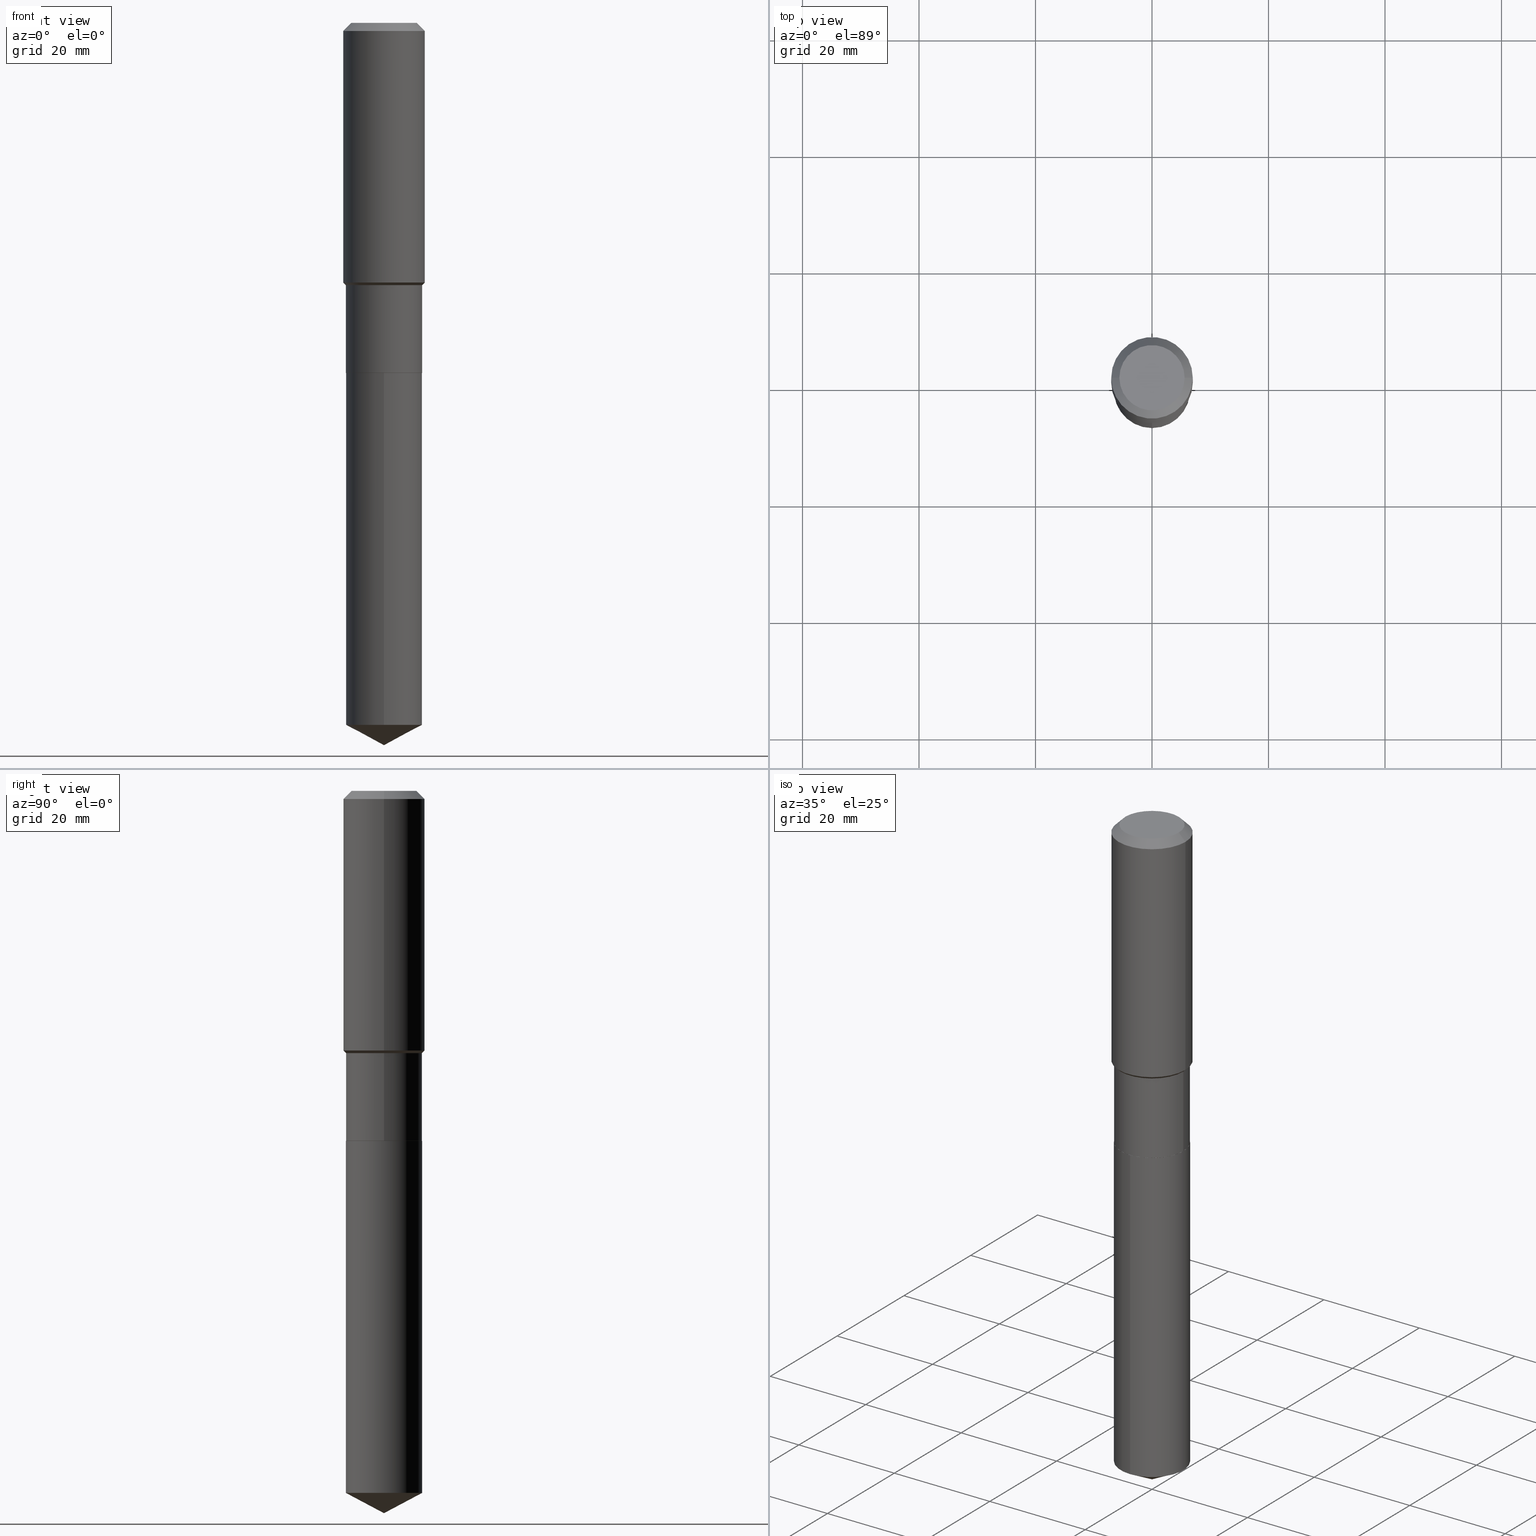
[diagram: canonical four-view strip — front | top / right | iso, engineering-drawing reading convention]
A machine part, canonical four-view strip (front | top / right | iso — engineering-drawing reading convention). The complete STEP part file that produces these views, byte-faithful:
ISO-10303-21;
HEADER;
FILE_DESCRIPTION (( 'STEP AP203' ),
    '1' );
FILE_NAME ('54829.STEP',
    '2024-04-24T16:04:50',
    ( '' ),
    ( '' ),
    'SwSTEP 2.0',
    'SolidWorks 2023',
    '' );
FILE_SCHEMA (( 'CONFIG_CONTROL_DESIGN' ));
ENDSEC;

DATA;
#1 = APPROVAL ( #55, 'UNSPECIFIED' ) ;
#2 = ORIENTED_EDGE ( 'NONE', *, *, #311, .F. ) ;
#3 = AXIS2_PLACEMENT_3D ( 'NONE', #380, #146, #4 ) ;
#4 = DIRECTION ( 'NONE',  ( 1.000000000000000000, -6.982962677686266711E-15, 4.876132675269083677E-29 ) ) ;
#5 = AXIS2_PLACEMENT_3D ( 'NONE', #474, #402, #318 ) ;
#6 = EDGE_CURVE ( 'NONE', #155, #169, #469, .T. ) ;
#7 = CARTESIAN_POINT ( 'NONE',  ( 5.785001007911558337E-29, -8.259448255167344273E-15, -2.365599999999999703 ) ) ;
#8 = CARTESIAN_POINT ( 'NONE',  ( -0.2577999999999999181, 1.831779172789537697E-15, -1.268101466267714406E-29 ) ) ;
#9 =( NAMED_UNIT ( * ) SI_UNIT ( $, .STERADIAN. ) SOLID_ANGLE_UNIT ( ) );
#10 = EDGE_LOOP ( 'NONE', ( #302, #115 ) ) ;
#11 = DIRECTION ( 'NONE',  ( 1.000000000000000000, -6.982962677686265922E-15, 0.000000000000000000 ) ) ;
#12 = CLOSED_SHELL ( 'NONE', ( #239, #96, #489, #98, #188, #297, #265, #43, #486, #131, #62, #108 ) ) ;
#13 = CONICAL_SURFACE ( 'NONE', #280, 0.2756000000000000116, 0.7853981633974452814 ) ;
#14 = CYLINDRICAL_SURFACE ( 'NONE', #202, 0.2577999999999999181 ) ;
#15 = DIRECTION ( 'NONE',  ( -2.445468806185136597E-29, 3.491481338843145583E-15, 1.000000000000000000 ) ) ;
#16 = CARTESIAN_POINT ( 'NONE',  ( 1.160379970980934327E-28, -1.656648467126306659E-14, -4.744925308517671247 ) ) ;
#17 = CARTESIAN_POINT ( 'NONE',  ( 4.335082552724389788E-29, -6.189348969367241722E-15, -1.772699999999999276 ) ) ;
#18 = LINE ( 'NONE', #283, #264 ) ;
#19 = CONICAL_SURFACE ( 'NONE', #377, 0.2572999999999999732, 0.7853981633978239785 ) ;
#20 = APPROVAL_PERSON_ORGANIZATION ( #327, #1, #211 ) ;
#21 = DIRECTION ( 'NONE',  ( -6.982962677686265922E-15, -1.000000000000000000, 4.238709066973255853E-15 ) ) ;
#22 = DIRECTION ( 'NONE',  ( 1.000000000000000000, -6.982962677686267499E-15, 0.000000000000000000 ) ) ;
#23 = DATE_AND_TIME ( #208, #440 ) ;
#24 = ORIENTED_EDGE ( 'NONE', *, *, #38, .F. ) ;
#25 = DIRECTION ( 'NONE',  ( -2.445468806185136597E-29, 3.491481338843145583E-15, 1.000000000000000000 ) ) ;
#26 = LINE ( 'NONE', #405, #82 ) ;
#27 = DATE_AND_TIME ( #121, #216 ) ;
#28 = DIRECTION ( 'NONE',  ( -2.445566682734492897E-29, 3.491341174053680323E-15, 1.000000000000000000 ) ) ;
#29 = SECURITY_CLASSIFICATION ( '', '', #175 ) ;
#30 = APPROVAL_DATE_TIME ( #27, #112 ) ;
#31 = DIRECTION ( 'NONE',  ( -2.445566682734492897E-29, 3.491341174053679928E-15, 1.000000000000000000 ) ) ;
#32 = EDGE_LOOP ( 'NONE', ( #234, #337, #332, #189 ) ) ;
#33 = DIRECTION ( 'NONE',  ( -6.165590087286836029E-15, -0.8829475928589264333, 0.4694715627858916385 ) ) ;
#34 = DIRECTION ( 'NONE',  ( -0.7071067811865482389, 7.493145998870357316E-15, 0.7071067811865467956 ) ) ;
#35 = ORIENTED_EDGE ( 'NONE', *, *, #207, .F. ) ;
#36 = AXIS2_PLACEMENT_3D ( 'NONE', #306, #196, #11 ) ;
#37 = CIRCLE ( 'NONE', #118, 0.2756000000000002337 ) ;
#38 = EDGE_CURVE ( 'NONE', #68, #382, #85, .T. ) ;
#39 = DIRECTION ( 'NONE',  ( -2.445468806185136877E-29, 3.491481338843145188E-15, 1.000000000000000000 ) ) ;
#40 = EDGE_CURVE ( 'NONE', #169, #155, #236, .T. ) ;
#41 = AXIS2_PLACEMENT_3D ( 'NONE', #454, #73, #225 ) ;
#42 = VECTOR ( 'NONE', #359, 39.37007874015748143 ) ;
#43 = ADVANCED_FACE ( 'NONE', ( #281 ), #391, .T. ) ;
#44 = CARTESIAN_POINT ( 'NONE',  ( 0.2577999999999999181, -1.800207778307519167E-15, 1.257078372800191925E-29 ) ) ;
#45 = EDGE_LOOP ( 'NONE', ( #348, #153, #213, #274 ) ) ;
#46 = CARTESIAN_POINT ( 'NONE',  ( 0.2577999999999999181, -7.989556747674760100E-15, -1.772699999999999276 ) ) ;
#47 = AXIS2_PLACEMENT_3D ( 'NONE', #232, #154, #307 ) ;
#48 = ORIENTED_EDGE ( 'NONE', *, *, #479, .F. ) ;
#49 = DIRECTION ( 'NONE',  ( 1.000000000000000000, -6.982962677686266711E-15, 0.000000000000000000 ) ) ;
#50 = EDGE_CURVE ( 'NONE', #388, #397, #156, .T. ) ;
#51 = DIRECTION ( 'NONE',  ( -2.445566682734492897E-29, 3.491341174053680323E-15, 1.000000000000000000 ) ) ;
#52 = PERSON_AND_ORGANIZATION ( #308, #396 ) ;
#53 = CIRCLE ( 'NONE', #448, 0.2577999999999999181 ) ;
#54 = FACE_OUTER_BOUND ( 'NONE', #198, .T. ) ;
#55 = APPROVAL_STATUS ( 'not_yet_approved' ) ;
#56 = CARTESIAN_POINT ( 'NONE',  ( -0.2204800000000000093, 1.635828836874783961E-15, 3.860086710901350968E-18 ) ) ;
#57 = DIRECTION ( 'NONE',  ( 1.000000000000000000, -6.982962677686266711E-15, 0.000000000000000000 ) ) ;
#58 = DIRECTION ( 'NONE',  ( -2.445468806185136877E-29, 3.491481338843145188E-15, 1.000000000000000000 ) ) ;
#59 = COORDINATED_UNIVERSAL_TIME_OFFSET ( 5, 0, .BEHIND. ) ;
#60 = LINE ( 'NONE', #404, #100 ) ;
#61 = DIRECTION ( 'NONE',  ( -2.445566682734492897E-29, 3.491341174053680323E-15, 1.000000000000000000 ) ) ;
#62 = ADVANCED_FACE ( 'NONE', ( #78 ), #303, .F. ) ;
#63 = ORIENTED_EDGE ( 'NONE', *, *, #408, .T. ) ;
#64 = EDGE_CURVE ( 'NONE', #397, #237, #289, .T. ) ;
#65 = CC_DESIGN_APPROVAL ( #286, ( #29 ) ) ;
#66 = EDGE_CURVE ( 'NONE', #382, #462, #99, .T. ) ;
#67 = DIRECTION ( 'NONE',  ( 1.000000000000000000, -6.982962677686264344E-15, 0.000000000000000000 ) ) ;
#68 = VERTEX_POINT ( 'NONE', #472 ) ;
#69 = DIRECTION ( 'NONE',  ( -2.445468806185136597E-29, 3.491481338843145583E-15, 1.000000000000000000 ) ) ;
#70 = AXIS2_PLACEMENT_3D ( 'NONE', #275, #238, #49 ) ;
#71 = ORIENTED_EDGE ( 'NONE', *, *, #127, .T. ) ;
#72 = CIRCLE ( 'NONE', #460, 0.2577999999999999736 ) ;
#73 = DIRECTION ( 'NONE',  ( -2.445468806185136597E-29, 3.491481338843145583E-15, 1.000000000000000000 ) ) ;
#74 = VECTOR ( 'NONE', #34, 39.37007874015748143 ) ;
#75 = VERTEX_POINT ( 'NONE', #150 ) ;
#76 = DIRECTION ( 'NONE',  ( -1.000000000000000000, 6.982962677686265922E-15, -4.876176775795935793E-29 ) ) ;
#77 = ORIENTED_EDGE ( 'NONE', *, *, #295, .F. ) ;
#78 = FACE_OUTER_BOUND ( 'NONE', #142, .T. ) ;
#79 = CYLINDRICAL_SURFACE ( 'NONE', #212, 0.2577999999999999181 ) ;
#80 = EDGE_CURVE ( 'NONE', #97, #135, #126, .T. ) ;
#81 = DIRECTION ( 'NONE',  ( 1.000000000000000000, -6.982962677686267499E-15, 4.876176775795936353E-29 ) ) ;
#82 = VECTOR ( 'NONE', #33, 39.37007874015748143 ) ;
#83 = ORIENTED_EDGE ( 'NONE', *, *, #40, .T. ) ;
#84 = PERSON_AND_ORGANIZATION ( #308, #396 ) ;
#85 = LINE ( 'NONE', #287, #364 ) ;
#86 = CARTESIAN_POINT ( 'NONE',  ( -8.434312785521808662E-28, 1.204093177456912350E-13, 34.48807874015748354 ) ) ;
#87 = APPROVAL_ROLE ( '' ) ;
#88 = MECHANICAL_CONTEXT ( 'NONE', #463, 'mechanical' ) ;
#89 = VECTOR ( 'NONE', #458, 39.37007874015748854 ) ;
#90 = CARTESIAN_POINT ( 'NONE',  ( -0.2578000000000000291, -5.391746569143044548E-15, -2.365099999999999536 ) ) ;
#91 = CARTESIAN_POINT ( 'NONE',  ( -0.2572999999999999732, -6.428572568882493907E-15, -2.365599999999999259 ) ) ;
#92 = PERSON_AND_ORGANIZATION ( #308, #396 ) ;
#93 = CARTESIAN_POINT ( 'NONE',  ( 1.347942405969256063E-30, -1.924504513970354330E-16, -0.05512000000000035621 ) ) ;
#94 = CARTESIAN_POINT ( 'NONE',  ( 5.785001007911558337E-29, -8.259448255167344273E-15, -2.365599999999999703 ) ) ;
#95 = DIRECTION ( 'NONE',  ( 1.000000000000000000, -6.982962677686265922E-15, 0.000000000000000000 ) ) ;
#96 = ADVANCED_FACE ( 'NONE', ( #464 ), #409, .T. ) ;
#97 = VERTEX_POINT ( 'NONE', #244 ) ;
#98 = ADVANCED_FACE ( 'NONE', ( #312 ), #482, .T. ) ;
#99 = CIRCLE ( 'NONE', #36, 0.2756000000000000116 ) ;
#100 = VECTOR ( 'NONE', #31, 39.37007874015748143 ) ;
#101 = ORIENTED_EDGE ( 'NONE', *, *, #346, .T. ) ;
#102 = DIRECTION ( 'NONE',  ( 1.000000000000000000, -6.982962677686266711E-15, 0.000000000000000000 ) ) ;
#103 = ORIENTED_EDGE ( 'NONE', *, *, #346, .F. ) ;
#104 = FACE_OUTER_BOUND ( 'NONE', #139, .T. ) ;
#105 = ORIENTED_EDGE ( 'NONE', *, *, #120, .F. ) ;
#106 = AXIS2_PLACEMENT_3D ( 'NONE', #229, #270, #201 ) ;
#107 = DIRECTION ( 'NONE',  ( 1.000000000000000000, -6.982962677686265922E-15, 4.876176775795935793E-29 ) ) ;
#108 = ADVANCED_FACE ( 'NONE', ( #113 ), #406, .T. ) ;
#109 = ORIENTED_EDGE ( 'NONE', *, *, #299, .F. ) ;
#110 = CARTESIAN_POINT ( 'NONE',  ( 1.347942405969256063E-30, -1.924504513970354330E-16, -0.05512000000000035621 ) ) ;
#111 = ORIENTED_EDGE ( 'NONE', *, *, #120, .T. ) ;
#112 = APPROVAL ( #473, 'UNSPECIFIED' ) ;
#113 = FACE_OUTER_BOUND ( 'NONE', #423, .T. ) ;
#114 = DIRECTION ( 'NONE',  ( 0.7071067811865453523, -7.319954787623248157E-15, -0.7071067811865496822 ) ) ;
#115 = ORIENTED_EDGE ( 'NONE', *, *, #227, .T. ) ;
#116 = CARTESIAN_POINT ( 'NONE',  ( -0.2572999999999999732, -6.431221796056605108E-15, -2.365599999999999259 ) ) ;
#117 = VECTOR ( 'NONE', #39, 39.37007874015748143 ) ;
#118 = AXIS2_PLACEMENT_3D ( 'NONE', #354, #134, #22 ) ;
#119 = LINE ( 'NONE', #433, #181 ) ;
#120 = EDGE_CURVE ( 'NONE', #195, #169, #18, .T. ) ;
#121 = CALENDAR_DATE ( 2024, 24, 4 ) ;
#122 = CARTESIAN_POINT ( 'NONE',  ( 1.831779172789595679E-15, 0.2577999999999917025, -2.365600000000000147 ) ) ;
#123 = CARTESIAN_POINT ( 'NONE',  ( 1.831779172789654054E-15, 0.2577999999999834313, -4.744925308517672136 ) ) ;
#124 = DIRECTION ( 'NONE',  ( -6.982962677686265922E-15, -1.000000000000000000, 3.541896320645556530E-15 ) ) ;
#125 = COORDINATED_UNIVERSAL_TIME_OFFSET ( 5, 0, .BEHIND. ) ;
#126 = CIRCLE ( 'NONE', #194, 0.2577999999999999181 ) ;
#127 = EDGE_CURVE ( 'NONE', #462, #382, #269, .T. ) ;
#128 = DIRECTION ( 'NONE',  ( -6.982962677686265922E-15, -1.000000000000000000, 3.541896320645556530E-15 ) ) ;
#129 = DATE_TIME_ROLE ( 'classification_date' ) ;
#130 = PERSON_AND_ORGANIZATION_ROLE ( 'design_supplier' ) ;
#131 = ADVANCED_FACE ( 'NONE', ( #260 ), #179, .F. ) ;
#132 = DIRECTION ( 'NONE',  ( -2.445468806185136597E-29, 3.491481338843145583E-15, 1.000000000000000000 ) ) ;
#133 = CARTESIAN_POINT ( 'NONE',  ( -0.2577999999999999181, -4.357569796577704025E-15, -1.772699999999999276 ) ) ;
#134 = DIRECTION ( 'NONE',  ( -2.445468806185136597E-29, 3.491481338843145583E-15, 1.000000000000000000 ) ) ;
#135 = VERTEX_POINT ( 'NONE', #46 ) ;
#136 = CC_DESIGN_APPROVAL ( #112, ( #144 ) ) ;
#137 =( GEOMETRIC_REPRESENTATION_CONTEXT ( 3 ) GLOBAL_UNCERTAINTY_ASSIGNED_CONTEXT ( ( #309 ) ) GLOBAL_UNIT_ASSIGNED_CONTEXT ( ( #488, #291, #9 ) ) REPRESENTATION_CONTEXT ( 'NONE', 'WORKASPACE' ) );
#138 = DIRECTION ( 'NONE',  ( -6.982962677686265922E-15, -1.000000000000000000, 3.179031800229941890E-15 ) ) ;
#139 = EDGE_LOOP ( 'NONE', ( #455, #223, #77, #445 ) ) ;
#140 = ORIENTED_EDGE ( 'NONE', *, *, #268, .T. ) ;
#141 = VERTEX_POINT ( 'NONE', #193 ) ;
#142 = EDGE_LOOP ( 'NONE', ( #383, #339 ) ) ;
#143 = AXIS2_PLACEMENT_3D ( 'NONE', #242, #390, #468 ) ;
#144 = PRODUCT_DEFINITION_FORMATION_WITH_SPECIFIED_SOURCE ( 'ANY', '', #147, .NOT_KNOWN. ) ;
#145 = ORIENTED_EDGE ( 'NONE', *, *, #334, .F. ) ;
#146 = DIRECTION ( 'NONE',  ( -2.445468806185136597E-29, 3.491481338843145583E-15, 1.000000000000000000 ) ) ;
#147 = PRODUCT ( '54829', '54829', '', ( #88 ) ) ;
#148 = AXIS2_PLACEMENT_3D ( 'NONE', #191, #342, #279 ) ;
#149 = VERTEX_POINT ( 'NONE', #164 ) ;
#150 = CARTESIAN_POINT ( 'NONE',  ( -0.2756000000000002337, -4.168944821780994872E-15, -1.754899999999999016 ) ) ;
#151 = CONICAL_SURFACE ( 'NONE', #298, 74.04434902938362484, 1.082104136236486935 ) ;
#152 = EDGE_LOOP ( 'NONE', ( #253, #111, #247 ) ) ;
#153 = ORIENTED_EDGE ( 'NONE', *, *, #64, .T. ) ;
#154 = DIRECTION ( 'NONE',  ( -2.445468806185136597E-29, 3.491481338843145583E-15, 1.000000000000000000 ) ) ;
#155 = VERTEX_POINT ( 'NONE', #436 ) ;
#156 = LINE ( 'NONE', #116, #89 ) ;
#157 = ORIENTED_EDGE ( 'NONE', *, *, #449, .T. ) ;
#158 = PRODUCT_RELATED_PRODUCT_CATEGORY ( 'detail', '', ( #147 ) ) ;
#159 = CARTESIAN_POINT ( 'NONE',  ( 4.335082552724389788E-29, -6.189348969367241722E-15, -1.772699999999999276 ) ) ;
#160 = CONICAL_SURFACE ( 'NONE', #446, 0.2577999999999999181, 0.7853981633974492782 ) ;
#161 = AXIS2_PLACEMENT_3D ( 'NONE', #257, #162, #443 ) ;
#162 = DIRECTION ( 'NONE',  ( 0.000000000000000000, 0.000000000000000000, 1.000000000000000000 ) ) ;
#163 = ORIENTED_EDGE ( 'NONE', *, *, #64, .F. ) ;
#164 = CARTESIAN_POINT ( 'NONE',  ( 1.831779172789654449E-15, 0.2577999999999917025, -2.365600000000000147 ) ) ;
#165 = DIRECTION ( 'NONE',  ( 2.445566682734492616E-29, -3.491341174053679928E-15, -1.000000000000000000 ) ) ;
#166 = FACE_OUTER_BOUND ( 'NONE', #226, .T. ) ;
#167 = EDGE_LOOP ( 'NONE', ( #184, #243, #341, #109 ) ) ;
#168 = PERSON_AND_ORGANIZATION ( #308, #396 ) ;
#169 = VERTEX_POINT ( 'NONE', #123 ) ;
#170 = EDGE_CURVE ( 'NONE', #237, #397, #180, .T. ) ;
#171 = PERSON_AND_ORGANIZATION ( #308, #396 ) ;
#172 = AXIS2_PLACEMENT_3D ( 'NONE', #393, #25, #176 ) ;
#173 = DIRECTION ( 'NONE',  ( -2.445566682734492897E-29, 3.491341174053679928E-15, 1.000000000000000000 ) ) ;
#174 = LINE ( 'NONE', #133, #74 ) ;
#175 = SECURITY_CLASSIFICATION_LEVEL ( 'unclassified' ) ;
#176 = DIRECTION ( 'NONE',  ( 1.000000000000000000, -6.982962677686267499E-15, 4.876176775795935793E-29 ) ) ;
#177 = EDGE_CURVE ( 'NONE', #397, #97, #300, .T. ) ;
#178 = LINE ( 'NONE', #255, #461 ) ;
#179 = PLANE ( 'NONE',  #450 ) ;
#180 = CIRCLE ( 'NONE', #261, 0.2577999999999999736 ) ;
#181 = VECTOR ( 'NONE', #293, 39.37007874015748854 ) ;
#182 = EDGE_LOOP ( 'NONE', ( #157, #476, #266, #426 ) ) ;
#183 = DIRECTION ( 'NONE',  ( -6.982962677686265922E-15, -1.000000000000000000, 3.179031800229941890E-15 ) ) ;
#184 = ORIENTED_EDGE ( 'NONE', *, *, #227, .F. ) ;
#185 = CIRCLE ( 'NONE', #41, 0.2204800000000000093 ) ;
#186 = VECTOR ( 'NONE', #173, 39.37007874015748143 ) ;
#187 = CYLINDRICAL_SURFACE ( 'NONE', #323, 0.2577999999999999736 ) ;
#188 = ADVANCED_FACE ( 'NONE', ( #192 ), #79, .T. ) ;
#189 = ORIENTED_EDGE ( 'NONE', *, *, #389, .F. ) ;
#190 = CC_DESIGN_PERSON_AND_ORGANIZATION_ASSIGNMENT ( #84, #130, ( #144 ) ) ;
#191 = CARTESIAN_POINT ( 'NONE',  ( 5.783778273508465535E-29, -8.257702514497921981E-15, -2.365099999999999536 ) ) ;
#192 = FACE_OUTER_BOUND ( 'NONE', #481, .T. ) ;
#193 = CARTESIAN_POINT ( 'NONE',  ( -1.800207778307461580E-15, -0.2578000000000082448, -2.365599999999998815 ) ) ;
#194 = AXIS2_PLACEMENT_3D ( 'NONE', #159, #15, #385 ) ;
#195 = VERTEX_POINT ( 'NONE', #220 ) ;
#196 = DIRECTION ( 'NONE',  ( -2.445468806185136597E-29, 3.491481338843145583E-15, 1.000000000000000000 ) ) ;
#197 = APPROVAL_PERSON_ORGANIZATION ( #52, #286, #87 ) ;
#198 = EDGE_LOOP ( 'NONE', ( #372, #228 ) ) ;
#199 = VERTEX_POINT ( 'NONE', #375 ) ;
#200 = CC_DESIGN_PERSON_AND_ORGANIZATION_ASSIGNMENT ( #171, #435, ( #144 ) ) ;
#201 = DIRECTION ( 'NONE',  ( 1.000000000000000000, -6.982962677686267499E-15, 4.876176775795935793E-29 ) ) ;
#202 = AXIS2_PLACEMENT_3D ( 'NONE', #425, #277, #81 ) ;
#203 = APPLICATION_PROTOCOL_DEFINITION ( 'international standard', 'config_control_design', 1994, #222 ) ;
#204 = DIRECTION ( 'NONE',  ( 0.7071067811865482389, -2.468850131082264555E-15, 0.7071067811865467956 ) ) ;
#205 = ADVANCED_FACE ( 'NONE', ( #104 ), #187, .T. ) ;
#206 = CALENDAR_DATE ( 2024, 24, 4 ) ;
#207 = EDGE_CURVE ( 'NONE', #305, #68, #215, .T. ) ;
#208 = CALENDAR_DATE ( 2024, 24, 4 ) ;
#209 = FACE_OUTER_BOUND ( 'NONE', #152, .T. ) ;
#210 = DATE_AND_TIME ( #319, #290 ) ;
#211 = APPROVAL_ROLE ( '' ) ;
#212 = AXIS2_PLACEMENT_3D ( 'NONE', #233, #69, #386 ) ;
#213 = ORIENTED_EDGE ( 'NONE', *, *, #284, .T. ) ;
#214 = MANIFOLD_SOLID_BREP ( 'Body-Move/Copy2[2]', #12 ) ;
#215 = CIRCLE ( 'NONE', #3, 0.2204800000000000093 ) ;
#216 = LOCAL_TIME ( 12, 4, 50.00000000000000000, #367 ) ;
#217 = ORIENTED_EDGE ( 'NONE', *, *, #328, .T. ) ;
#218 = MANIFOLD_SOLID_BREP ( 'Body-Move/Copy2[1]', #351 ) ;
#219 = EDGE_LOOP ( 'NONE', ( #48, #83, #63, #145 ) ) ;
#220 = CARTESIAN_POINT ( 'NONE',  ( 1.193925654510979155E-28, -1.704472761173006507E-14, -4.881999999999999673 ) ) ;
#221 = DIRECTION ( 'NONE',  ( -2.445468806185136597E-29, 3.491481338843145583E-15, 1.000000000000000000 ) ) ;
#222 = APPLICATION_CONTEXT ( 'configuration controlled 3d designs of mechanical parts and assemblies' ) ;
#223 = ORIENTED_EDGE ( 'NONE', *, *, #479, .T. ) ;
#224 = CARTESIAN_POINT ( 'NONE',  ( 1.347942405969256063E-30, -1.924504513970354330E-16, -0.05512000000000035621 ) ) ;
#225 = DIRECTION ( 'NONE',  ( 1.000000000000000000, -6.982962677686266711E-15, 4.876132675269083677E-29 ) ) ;
#226 = EDGE_LOOP ( 'NONE', ( #24, #35, #420, #71 ) ) ;
#227 = EDGE_CURVE ( 'NONE', #68, #305, #185, .T. ) ;
#228 = ORIENTED_EDGE ( 'NONE', *, *, #334, .T. ) ;
#229 = CARTESIAN_POINT ( 'NONE',  ( 0.000000000000000000, 0.000000000000000000, 0.000000000000000000 ) ) ;
#230 = LINE ( 'NONE', #44, #294 ) ;
#231 = ORIENTED_EDGE ( 'NONE', *, *, #366, .T. ) ;
#232 = CARTESIAN_POINT ( 'NONE',  ( 4.335082552724389788E-29, -6.189348969367241722E-15, -1.772699999999999276 ) ) ;
#233 = CARTESIAN_POINT ( 'NONE',  ( 0.000000000000000000, 0.000000000000000000, 0.000000000000000000 ) ) ;
#234 = ORIENTED_EDGE ( 'NONE', *, *, #328, .F. ) ;
#235 = CARTESIAN_POINT ( 'NONE',  ( 0.2572999999999999732, -1.005616455213601885E-14, -2.365599999999999259 ) ) ;
#236 = CIRCLE ( 'NONE', #143, 0.2577999999999999736 ) ;
#237 = VERTEX_POINT ( 'NONE', #271 ) ;
#238 = DIRECTION ( 'NONE',  ( -2.445468806185136597E-29, 3.491481338843145583E-15, 1.000000000000000000 ) ) ;
#239 = ADVANCED_FACE ( 'NONE', ( #352 ), #19, .T. ) ;
#240 = LOCAL_TIME ( 12, 4, 50.00000000000000000, #362 ) ;
#241 = CARTESIAN_POINT ( 'NONE',  ( 4.335082552724389788E-29, -6.189348969367241722E-15, -1.772699999999999276 ) ) ;
#242 = CARTESIAN_POINT ( 'NONE',  ( 1.160379970980934327E-28, -1.656648467126306659E-14, -4.744925308517671247 ) ) ;
#243 = ORIENTED_EDGE ( 'NONE', *, *, #38, .T. ) ;
#244 = CARTESIAN_POINT ( 'NONE',  ( -0.2577999999999999181, -5.391746569143044548E-15, -1.772699999999999276 ) ) ;
#245 = CC_DESIGN_PERSON_AND_ORGANIZATION_ASSIGNMENT ( #92, #401, ( #441 ) ) ;
#246 = ORIENTED_EDGE ( 'NONE', *, *, #451, .F. ) ;
#247 = ORIENTED_EDGE ( 'NONE', *, *, #6, .F. ) ;
#248 = PERSON_AND_ORGANIZATION ( #308, #396 ) ;
#249 = LENGTH_MEASURE_WITH_UNIT ( LENGTH_MEASURE( 0.02539999999999999897 ), #444 );
#250 = DIMENSIONAL_EXPONENTS ( 1.000000000000000000, 0.000000000000000000, 0.000000000000000000, 0.000000000000000000, 0.000000000000000000, 0.000000000000000000, 0.000000000000000000 ) ;
#251 = AXIS2_PLACEMENT_3D ( 'NONE', #16, #51, #21 ) ;
#252 = AXIS2_PLACEMENT_3D ( 'NONE', #363, #165, #321 ) ;
#253 = ORIENTED_EDGE ( 'NONE', *, *, #361, .F. ) ;
#254 = DIRECTION ( 'NONE',  ( 1.000000000000000000, -6.982962677686267499E-15, 0.000000000000000000 ) ) ;
#255 = CARTESIAN_POINT ( 'NONE',  ( 0.2756000000000001227, -1.924504513970336137E-15, 1.343874319409360548E-29 ) ) ;
#256 = CARTESIAN_POINT ( 'NONE',  ( -8.434312785521808662E-28, 1.204093177456912350E-13, 34.48807874015748354 ) ) ;
#257 = CARTESIAN_POINT ( 'NONE',  ( 0.000000000000000000, 0.000000000000000000, 0.000000000000000000 ) ) ;
#258 = LINE ( 'NONE', #122, #186 ) ;
#259 = DIRECTION ( 'NONE',  ( -6.982962677686265922E-15, -1.000000000000000000, 3.179031800229941890E-15 ) ) ;
#260 = FACE_OUTER_BOUND ( 'NONE', #10, .T. ) ;
#261 = AXIS2_PLACEMENT_3D ( 'NONE', #411, #267, #67 ) ;
#262 = CARTESIAN_POINT ( 'NONE',  ( 5.785001007911558337E-29, -8.259448255167344273E-15, -2.365599999999999703 ) ) ;
#263 = EDGE_LOOP ( 'NONE', ( #103, #343, #231, #344 ) ) ;
#264 = VECTOR ( 'NONE', #434, 39.37007874015748143 ) ;
#265 = ADVANCED_FACE ( 'NONE', ( #360 ), #160, .T. ) ;
#266 = ORIENTED_EDGE ( 'NONE', *, *, #170, .F. ) ;
#267 = DIRECTION ( 'NONE',  ( -2.445468806185136597E-29, 3.491481338843145583E-15, 1.000000000000000000 ) ) ;
#268 = EDGE_CURVE ( 'NONE', #388, #310, #439, .T. ) ;
#269 = CIRCLE ( 'NONE', #278, 0.2756000000000000116 ) ;
#270 = DIRECTION ( 'NONE',  ( -2.445468806185136597E-29, 3.491481338843145583E-15, 1.000000000000000000 ) ) ;
#271 = CARTESIAN_POINT ( 'NONE',  ( 0.2577999999999999736, -1.005791029280544115E-14, -2.365099999999999536 ) ) ;
#272 = ORIENTED_EDGE ( 'NONE', *, *, #366, .F. ) ;
#273 = DIRECTION ( 'NONE',  ( 2.445468806185136597E-29, -3.491481338843145583E-15, -1.000000000000000000 ) ) ;
#274 = ORIENTED_EDGE ( 'NONE', *, *, #80, .F. ) ;
#275 = CARTESIAN_POINT ( 'NONE',  ( 5.785001007911557216E-29, -8.259448255167342695E-15, -2.365599999999999259 ) ) ;
#276 = ORIENTED_EDGE ( 'NONE', *, *, #317, .T. ) ;
#277 = DIRECTION ( 'NONE',  ( -2.445468806185136597E-29, 3.491481338843145583E-15, 1.000000000000000000 ) ) ;
#278 = AXIS2_PLACEMENT_3D ( 'NONE', #224, #379, #95 ) ;
#279 = DIRECTION ( 'NONE',  ( 1.000000000000000000, -6.982962677686264344E-15, 0.000000000000000000 ) ) ;
#280 = AXIS2_PLACEMENT_3D ( 'NONE', #93, #292, #438 ) ;
#281 = FACE_OUTER_BOUND ( 'NONE', #263, .T. ) ;
#282 = LINE ( 'NONE', #400, #415 ) ;
#283 = CARTESIAN_POINT ( 'NONE',  ( 1.193926060571804001E-28, -1.704472761173006191E-14, -4.881999999999999673 ) ) ;
#284 = EDGE_CURVE ( 'NONE', #237, #135, #230, .T. ) ;
#285 = PLANE ( 'NONE',  #252 ) ;
#286 = APPROVAL ( #442, 'UNSPECIFIED' ) ;
#287 = CARTESIAN_POINT ( 'NONE',  ( 0.2756000000000000116, -2.083203699582869812E-15, -0.05512000000000035621 ) ) ;
#288 = CARTESIAN_POINT ( 'NONE',  ( 4.291553207974293790E-29, -6.127200601535833039E-15, -1.754899999999999016 ) ) ;
#289 = CIRCLE ( 'NONE', #148, 0.2577999999999999736 ) ;
#290 = LOCAL_TIME ( 12, 4, 50.00000000000000000, #59 ) ;
#291 =( NAMED_UNIT ( * ) PLANE_ANGLE_UNIT ( ) SI_UNIT ( $, .RADIAN. ) );
#292 = DIRECTION ( 'NONE',  ( 2.445468806185136597E-29, -3.491481338843145583E-15, -1.000000000000000000 ) ) ;
#293 = DIRECTION ( 'NONE',  ( 0.7071067811868130271, -2.468850131085038979E-15, 0.7071067811862817853 ) ) ;
#294 = VECTOR ( 'NONE', #384, 39.37007874015748143 ) ;
#295 = EDGE_CURVE ( 'NONE', #141, #149, #72, .T. ) ;
#296 = LINE ( 'NONE', #322, #42 ) ;
#297 = ADVANCED_FACE ( 'NONE', ( #347 ), #14, .T. ) ;
#298 = AXIS2_PLACEMENT_3D ( 'NONE', #86, #28, #124 ) ;
#299 = EDGE_CURVE ( 'NONE', #305, #462, #282, .T. ) ;
#300 = LINE ( 'NONE', #8, #117 ) ;
#301 = ORIENTED_EDGE ( 'NONE', *, *, #451, .T. ) ;
#302 = ORIENTED_EDGE ( 'NONE', *, *, #207, .T. ) ;
#303 = PLANE ( 'NONE',  #428 ) ;
#304 = CC_DESIGN_APPROVAL ( #1, ( #441 ) ) ;
#305 = VERTEX_POINT ( 'NONE', #56 ) ;
#306 = CARTESIAN_POINT ( 'NONE',  ( 1.347942405969256063E-30, -1.924504513970354330E-16, -0.05512000000000035621 ) ) ;
#307 = DIRECTION ( 'NONE',  ( 1.000000000000000000, -6.982962677686265922E-15, 0.000000000000000000 ) ) ;
#308 = PERSON ( 'UNSPECIFIED', 'UNSPECIFIED', 'UNSPECIFIED', ('UNSPECIFIED'), ('UNSPECIFIED'), ('UNSPECIFIED') ) ;
#309 = UNCERTAINTY_MEASURE_WITH_UNIT (LENGTH_MEASURE( 1.000000000000000082E-05 ), #488, 'distance_accuracy_value', 'NONE');
#310 = VERTEX_POINT ( 'NONE', #235 ) ;
#311 = EDGE_CURVE ( 'NONE', #135, #97, #53, .T. ) ;
#312 = FACE_OUTER_BOUND ( 'NONE', #465, .T. ) ;
#313 = AXIS2_PLACEMENT_3D ( 'NONE', #256, #399, #128 ) ;
#314 = CARTESIAN_POINT ( 'NONE',  ( 5.785001007911557216E-29, -8.259448255167342695E-15, -2.365599999999999259 ) ) ;
#315 = COORDINATED_UNIVERSAL_TIME_OFFSET ( 5, 0, .BEHIND. ) ;
#316 = LINE ( 'NONE', #326, #387 ) ;
#317 = EDGE_CURVE ( 'NONE', #310, #237, #119, .T. ) ;
#318 = DIRECTION ( 'NONE',  ( 1.000000000000000000, -6.982962677686266711E-15, 0.000000000000000000 ) ) ;
#319 = CALENDAR_DATE ( 2024, 24, 4 ) ;
#320 = APPROVAL_ROLE ( '' ) ;
#321 = DIRECTION ( 'NONE',  ( 6.982962677686265922E-15, 1.000000000000000000, -3.491341174053679928E-15 ) ) ;
#322 = CARTESIAN_POINT ( 'NONE',  ( -0.2756000000000001227, 1.958255779754836984E-15, -1.355658510874252567E-29 ) ) ;
#323 = AXIS2_PLACEMENT_3D ( 'NONE', #338, #414, #183 ) ;
#324 = AXIS2_PLACEMENT_3D ( 'NONE', #94, #61, #138 ) ;
#325 = ADVANCED_BREP_SHAPE_REPRESENTATION ( '54829', ( #218, #214, #161 ), #137 ) ;
#326 = CARTESIAN_POINT ( 'NONE',  ( 0.2577999999999999181, -7.989556747674760100E-15, -1.772699999999999276 ) ) ;
#327 = PERSON_AND_ORGANIZATION ( #308, #396 ) ;
#328 = EDGE_CURVE ( 'NONE', #97, #75, #174, .T. ) ;
#329 = DIRECTION ( 'NONE',  ( -2.445566682734492897E-29, 3.491341174053680323E-15, 1.000000000000000000 ) ) ;
#330 = CARTESIAN_POINT ( 'NONE',  ( -4.719860820353095009E-47, 6.738710358733624243E-33, 1.930043355456227170E-18 ) ) ;
#331 = AXIS2_PLACEMENT_3D ( 'NONE', #376, #453, #102 ) ;
#332 = ORIENTED_EDGE ( 'NONE', *, *, #431, .T. ) ;
#333 = ADVANCED_FACE ( 'NONE', ( #490 ), #370, .T. ) ;
#334 = EDGE_CURVE ( 'NONE', #149, #141, #483, .T. ) ;
#335 = CC_DESIGN_PERSON_AND_ORGANIZATION_ASSIGNMENT ( #398, #484, ( #147 ) ) ;
#336 = CONICAL_SURFACE ( 'NONE', #313, 74.04434902938362484, 1.082104136236486935 ) ;
#337 = ORIENTED_EDGE ( 'NONE', *, *, #80, .T. ) ;
#338 = CARTESIAN_POINT ( 'NONE',  ( 5.785001007911558337E-29, -8.259448255167344273E-15, -2.365599999999999703 ) ) ;
#339 = ORIENTED_EDGE ( 'NONE', *, *, #268, .F. ) ;
#340 = ORIENTED_EDGE ( 'NONE', *, *, #177, .T. ) ;
#341 = ORIENTED_EDGE ( 'NONE', *, *, #66, .T. ) ;
#342 = DIRECTION ( 'NONE',  ( -2.445468806185136597E-29, 3.491481338843145583E-15, 1.000000000000000000 ) ) ;
#343 = ORIENTED_EDGE ( 'NONE', *, *, #389, .T. ) ;
#344 = ORIENTED_EDGE ( 'NONE', *, *, #127, .F. ) ;
#345 = DIRECTION ( 'NONE',  ( -2.438088387897960049E-29, 3.491481338843145188E-15, 1.000000000000000000 ) ) ;
#346 = EDGE_CURVE ( 'NONE', #75, #462, #296, .T. ) ;
#347 = FACE_OUTER_BOUND ( 'NONE', #45, .T. ) ;
#348 = ORIENTED_EDGE ( 'NONE', *, *, #177, .F. ) ;
#349 = DESIGN_CONTEXT ( 'detailed design', #222, 'design' ) ;
#350 = CC_DESIGN_DATE_AND_TIME_ASSIGNMENT ( #356, #129, ( #29 ) ) ;
#351 = CLOSED_SHELL ( 'NONE', ( #205, #475, #437, #333, #381 ) ) ;
#352 = FACE_OUTER_BOUND ( 'NONE', #182, .T. ) ;
#353 = ORIENTED_EDGE ( 'NONE', *, *, #361, .T. ) ;
#354 = CARTESIAN_POINT ( 'NONE',  ( 4.291553207974293790E-29, -6.127200601535833039E-15, -1.754899999999999016 ) ) ;
#355 = DIRECTION ( 'NONE',  ( -2.445468806185136597E-29, 3.491481338843145583E-15, 1.000000000000000000 ) ) ;
#356 = DATE_AND_TIME ( #392, #416 ) ;
#357 = DATE_AND_TIME ( #206, #240 ) ;
#358 = CARTESIAN_POINT ( 'NONE',  ( 0.2756000000000000116, -2.116954965367370658E-15, -0.05512000000000035621 ) ) ;
#359 = DIRECTION ( 'NONE',  ( -2.445468806185136877E-29, 3.491481338843145188E-15, 1.000000000000000000 ) ) ;
#360 = FACE_OUTER_BOUND ( 'NONE', #32, .T. ) ;
#361 = EDGE_CURVE ( 'NONE', #195, #155, #26, .T. ) ;
#362 = COORDINATED_UNIVERSAL_TIME_OFFSET ( 5, 0, .BEHIND. ) ;
#363 = CARTESIAN_POINT ( 'NONE',  ( 5.785001007911558337E-29, -8.259448255167344273E-15, -2.365599999999999703 ) ) ;
#364 = VECTOR ( 'NONE', #114, 39.37007874015748143 ) ;
#365 = CIRCLE ( 'NONE', #5, 0.2572999999999999732 ) ;
#366 = EDGE_CURVE ( 'NONE', #199, #382, #178, .T. ) ;
#367 = COORDINATED_UNIVERSAL_TIME_OFFSET ( 5, 0, .BEHIND. ) ;
#368 = FACE_OUTER_BOUND ( 'NONE', #467, .T. ) ;
#369 = PRODUCT_DEFINITION_SHAPE ( 'NONE', 'NONE',  #441 ) ;
#370 = CYLINDRICAL_SURFACE ( 'NONE', #324, 0.2577999999999999736 ) ;
#371 = APPROVAL_DATE_TIME ( #210, #286 ) ;
#372 = ORIENTED_EDGE ( 'NONE', *, *, #295, .T. ) ;
#373 = ORIENTED_EDGE ( 'NONE', *, *, #66, .F. ) ;
#374 = ORIENTED_EDGE ( 'NONE', *, *, #170, .T. ) ;
#375 = CARTESIAN_POINT ( 'NONE',  ( 0.2756000000000002337, -8.051705115506168782E-15, -1.754899999999999016 ) ) ;
#376 = CARTESIAN_POINT ( 'NONE',  ( 5.785001007911557216E-29, -8.259448255167342695E-15, -2.365599999999999259 ) ) ;
#377 = AXIS2_PLACEMENT_3D ( 'NONE', #314, #355, #57 ) ;
#378 = PERSON_AND_ORGANIZATION_ROLE ( 'classification_officer' ) ;
#379 = DIRECTION ( 'NONE',  ( -2.445468806185136597E-29, 3.491481338843145583E-15, 1.000000000000000000 ) ) ;
#380 = CARTESIAN_POINT ( 'NONE',  ( -9.439721640706190018E-47, 1.347742071746724849E-32, 3.860086710912454339E-18 ) ) ;
#381 = ADVANCED_FACE ( 'NONE', ( #54 ), #285, .F. ) ;
#382 = VERTEX_POINT ( 'NONE', #358 ) ;
#383 = ORIENTED_EDGE ( 'NONE', *, *, #449, .F. ) ;
#384 = DIRECTION ( 'NONE',  ( -2.445468806185136877E-29, 3.491481338843145188E-15, 1.000000000000000000 ) ) ;
#385 = DIRECTION ( 'NONE',  ( 1.000000000000000000, -6.982962677686265922E-15, 0.000000000000000000 ) ) ;
#386 = DIRECTION ( 'NONE',  ( 1.000000000000000000, -6.982962677686267499E-15, 4.876176775795936353E-29 ) ) ;
#387 = VECTOR ( 'NONE', #204, 39.37007874015748143 ) ;
#388 = VERTEX_POINT ( 'NONE', #91 ) ;
#389 = EDGE_CURVE ( 'NONE', #75, #199, #410, .T. ) ;
#390 = DIRECTION ( 'NONE',  ( -2.445566682734492897E-29, 3.491341174053680323E-15, 1.000000000000000000 ) ) ;
#391 = CYLINDRICAL_SURFACE ( 'NONE', #106, 0.2756000000000001227 ) ;
#392 = CALENDAR_DATE ( 2024, 24, 4 ) ;
#393 = CARTESIAN_POINT ( 'NONE',  ( 0.000000000000000000, 0.000000000000000000, 0.000000000000000000 ) ) ;
#394 = AXIS2_PLACEMENT_3D ( 'NONE', #110, #273, #424 ) ;
#395 = DIRECTION ( 'NONE',  ( -0.7071067811865453523, 2.468850131082234184E-15, -0.7071067811865496822 ) ) ;
#396 = ORGANIZATION ( 'UNSPECIFIED', 'UNSPECIFIED', '' ) ;
#397 = VERTEX_POINT ( 'NONE', #90 ) ;
#398 = PERSON_AND_ORGANIZATION ( #308, #396 ) ;
#399 = DIRECTION ( 'NONE',  ( -2.445566682734492897E-29, 3.491341174053680323E-15, 1.000000000000000000 ) ) ;
#400 = CARTESIAN_POINT ( 'NONE',  ( -0.2756000000000000116, 1.732054062573300039E-15, -0.05512000000000035621 ) ) ;
#401 = PERSON_AND_ORGANIZATION_ROLE ( 'creator' ) ;
#402 = DIRECTION ( 'NONE',  ( -2.445468806185136597E-29, 3.491481338843145583E-15, 1.000000000000000000 ) ) ;
#403 = APPROVAL_DATE_TIME ( #357, #1 ) ;
#404 = CARTESIAN_POINT ( 'NONE',  ( -1.800207778307461580E-15, -0.2578000000000082448, -2.365599999999998815 ) ) ;
#405 = CARTESIAN_POINT ( 'NONE',  ( 1.193879347157947829E-28, -1.704539075938198481E-14, -4.881999999999999673 ) ) ;
#406 = CONICAL_SURFACE ( 'NONE', #70, 0.2572999999999999732, 0.7853981633978239785 ) ;
#407 = AXIS2_PLACEMENT_3D ( 'NONE', #262, #329, #259 ) ;
#408 = EDGE_CURVE ( 'NONE', #155, #141, #60, .T. ) ;
#409 = CONICAL_SURFACE ( 'NONE', #394, 0.2756000000000000116, 0.7853981633974452814 ) ;
#410 = CIRCLE ( 'NONE', #470, 0.2756000000000002337 ) ;
#411 = CARTESIAN_POINT ( 'NONE',  ( 5.783778273508465535E-29, -8.257702514497921981E-15, -2.365099999999999536 ) ) ;
#412 = DIRECTION ( 'NONE',  ( 2.438088387897960049E-29, -3.491481338843145188E-15, -1.000000000000000000 ) ) ;
#413 = ORIENTED_EDGE ( 'NONE', *, *, #311, .T. ) ;
#414 = DIRECTION ( 'NONE',  ( -2.445566682734492897E-29, 3.491341174053680323E-15, 1.000000000000000000 ) ) ;
#415 = VECTOR ( 'NONE', #395, 39.37007874015748143 ) ;
#416 = LOCAL_TIME ( 12, 4, 50.00000000000000000, #125 ) ;
#417 = ORIENTED_EDGE ( 'NONE', *, *, #284, .F. ) ;
#418 = APPROVAL_PERSON_ORGANIZATION ( #168, #112, #320 ) ;
#419 = DIRECTION ( 'NONE',  ( -6.982962677686265922E-15, -1.000000000000000000, 3.179031800229941890E-15 ) ) ;
#420 = ORIENTED_EDGE ( 'NONE', *, *, #299, .T. ) ;
#421 = ORIENTED_EDGE ( 'NONE', *, *, #50, .F. ) ;
#422 = DIRECTION ( 'NONE',  ( 1.000000000000000000, -6.982962677686265922E-15, 0.000000000000000000 ) ) ;
#423 = EDGE_LOOP ( 'NONE', ( #421, #140, #276, #163 ) ) ;
#424 = DIRECTION ( 'NONE',  ( -1.000000000000000000, 6.982962677686269077E-15, 0.000000000000000000 ) ) ;
#425 = CARTESIAN_POINT ( 'NONE',  ( 0.000000000000000000, 0.000000000000000000, 0.000000000000000000 ) ) ;
#426 = ORIENTED_EDGE ( 'NONE', *, *, #317, .F. ) ;
#427 = CARTESIAN_POINT ( 'NONE',  ( 7.538872531009313305E-29, -5.747804409923589386E-15, -2.365599999999999703 ) ) ;
#428 = AXIS2_PLACEMENT_3D ( 'NONE', #427, #345, #107 ) ;
#429 = CC_DESIGN_SECURITY_CLASSIFICATION ( #29, ( #144 ) ) ;
#430 = EDGE_LOOP ( 'NONE', ( #105, #353, #452 ) ) ;
#431 = EDGE_CURVE ( 'NONE', #135, #199, #316, .T. ) ;
#432 = APPLICATION_PROTOCOL_DEFINITION ( 'international standard', 'config_control_design', 1994, #463 ) ;
#433 = CARTESIAN_POINT ( 'NONE',  ( 0.2572999999999999732, -1.005616455213601885E-14, -2.365599999999999259 ) ) ;
#434 = DIRECTION ( 'NONE',  ( 6.273719981627766865E-15, 0.8829475928589298750, 0.4694715627858853657 ) ) ;
#435 = PERSON_AND_ORGANIZATION_ROLE ( 'creator' ) ;
#436 = CARTESIAN_POINT ( 'NONE',  ( -1.800207778307403599E-15, -0.2578000000000165715, -4.744925308517670359 ) ) ;
#437 = ADVANCED_FACE ( 'NONE', ( #480 ), #336, .T. ) ;
#438 = DIRECTION ( 'NONE',  ( -1.000000000000000000, 6.982962677686269077E-15, 0.000000000000000000 ) ) ;
#439 = CIRCLE ( 'NONE', #331, 0.2572999999999999732 ) ;
#440 = LOCAL_TIME ( 12, 4, 50.00000000000000000, #315 ) ;
#441 = PRODUCT_DEFINITION ( 'UNKNOWN', '', #144, #349 ) ;
#442 = APPROVAL_STATUS ( 'not_yet_approved' ) ;
#443 = DIRECTION ( 'NONE',  ( 1.000000000000000000, 0.000000000000000000, 0.000000000000000000 ) ) ;
#444 =( LENGTH_UNIT ( ) NAMED_UNIT ( * ) SI_UNIT ( $, .METRE. ) );
#445 = ORIENTED_EDGE ( 'NONE', *, *, #408, .F. ) ;
#446 = AXIS2_PLACEMENT_3D ( 'NONE', #241, #221, #422 ) ;
#447 = CC_DESIGN_PERSON_AND_ORGANIZATION_ASSIGNMENT ( #248, #378, ( #29 ) ) ;
#448 = AXIS2_PLACEMENT_3D ( 'NONE', #17, #466, #471 ) ;
#449 = EDGE_CURVE ( 'NONE', #310, #388, #365, .T. ) ;
#450 = AXIS2_PLACEMENT_3D ( 'NONE', #330, #412, #76 ) ;
#451 = EDGE_CURVE ( 'NONE', #199, #75, #37, .T. ) ;
#452 = ORIENTED_EDGE ( 'NONE', *, *, #40, .F. ) ;
#453 = DIRECTION ( 'NONE',  ( -2.445468806185136597E-29, 3.491481338843145583E-15, 1.000000000000000000 ) ) ;
#454 = CARTESIAN_POINT ( 'NONE',  ( -9.439721640706190018E-47, 1.347742071746724849E-32, 3.860086710912454339E-18 ) ) ;
#455 = ORIENTED_EDGE ( 'NONE', *, *, #6, .T. ) ;
#456 = DIRECTION ( 'NONE',  ( -2.445566682734492897E-29, 3.491341174053680323E-15, 1.000000000000000000 ) ) ;
#457 = ORIENTED_EDGE ( 'NONE', *, *, #431, .F. ) ;
#458 = DIRECTION ( 'NONE',  ( -0.7071067811868130271, 7.493145998871311837E-15, 0.7071067811862817853 ) ) ;
#459 = CC_DESIGN_DATE_AND_TIME_ASSIGNMENT ( #23, #487, ( #441 ) ) ;
#460 = AXIS2_PLACEMENT_3D ( 'NONE', #7, #456, #419 ) ;
#461 = VECTOR ( 'NONE', #58, 39.37007874015748143 ) ;
#462 = VERTEX_POINT ( 'NONE', #477 ) ;
#463 = APPLICATION_CONTEXT ( 'configuration controlled 3d designs of mechanical parts and assemblies' ) ;
#464 = FACE_OUTER_BOUND ( 'NONE', #167, .T. ) ;
#465 = EDGE_LOOP ( 'NONE', ( #413, #217, #246, #457 ) ) ;
#466 = DIRECTION ( 'NONE',  ( -2.445468806185136597E-29, 3.491481338843145583E-15, 1.000000000000000000 ) ) ;
#467 = EDGE_LOOP ( 'NONE', ( #301, #101, #373, #272 ) ) ;
#468 = DIRECTION ( 'NONE',  ( -6.982962677686265922E-15, -1.000000000000000000, 4.238709066973255853E-15 ) ) ;
#469 = CIRCLE ( 'NONE', #251, 0.2577999999999999736 ) ;
#470 = AXIS2_PLACEMENT_3D ( 'NONE', #288, #132, #254 ) ;
#471 = DIRECTION ( 'NONE',  ( 1.000000000000000000, -6.982962677686265922E-15, 0.000000000000000000 ) ) ;
#472 = CARTESIAN_POINT ( 'NONE',  ( 0.2204800000000000093, -1.797903149065768707E-15, 3.860086710924123164E-18 ) ) ;
#473 = APPROVAL_STATUS ( 'not_yet_approved' ) ;
#474 = CARTESIAN_POINT ( 'NONE',  ( 5.785001007911557216E-29, -8.259448255167342695E-15, -2.365599999999999259 ) ) ;
#475 = ADVANCED_FACE ( 'NONE', ( #209 ), #151, .T. ) ;
#476 = ORIENTED_EDGE ( 'NONE', *, *, #50, .T. ) ;
#477 = CARTESIAN_POINT ( 'NONE',  ( -0.2756000000000000116, -1.201569746711596994E-15, -0.05512000000000035621 ) ) ;
#478 = SHAPE_DEFINITION_REPRESENTATION ( #369, #325 ) ;
#479 = EDGE_CURVE ( 'NONE', #169, #149, #258, .T. ) ;
#480 = FACE_OUTER_BOUND ( 'NONE', #430, .T. ) ;
#481 = EDGE_LOOP ( 'NONE', ( #374, #340, #2, #417 ) ) ;
#482 = CONICAL_SURFACE ( 'NONE', #47, 0.2577999999999999181, 0.7853981633974492782 ) ;
#483 = CIRCLE ( 'NONE', #407, 0.2577999999999999736 ) ;
#484 = PERSON_AND_ORGANIZATION_ROLE ( 'design_owner' ) ;
#485 = CYLINDRICAL_SURFACE ( 'NONE', #172, 0.2756000000000001227 ) ;
#486 = ADVANCED_FACE ( 'NONE', ( #166 ), #13, .T. ) ;
#487 = DATE_TIME_ROLE ( 'creation_date' ) ;
#488 =( CONVERSION_BASED_UNIT ( 'INCH', #249 ) LENGTH_UNIT ( ) NAMED_UNIT ( #250 ) );
#489 = ADVANCED_FACE ( 'NONE', ( #368 ), #485, .T. ) ;
#490 = FACE_OUTER_BOUND ( 'NONE', #219, .T. ) ;
ENDSEC;
END-ISO-10303-21;
